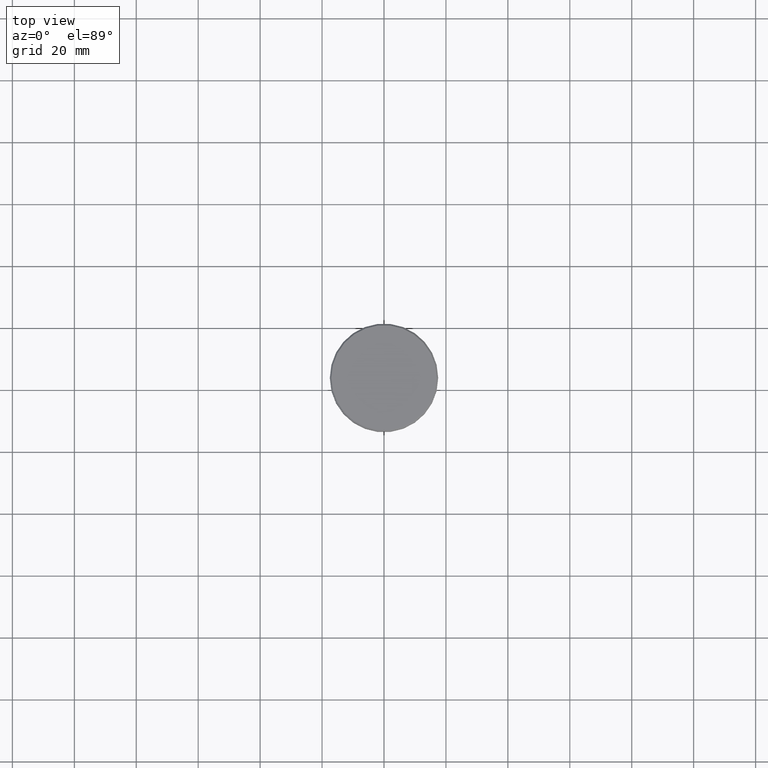
[diagram: clean part render]
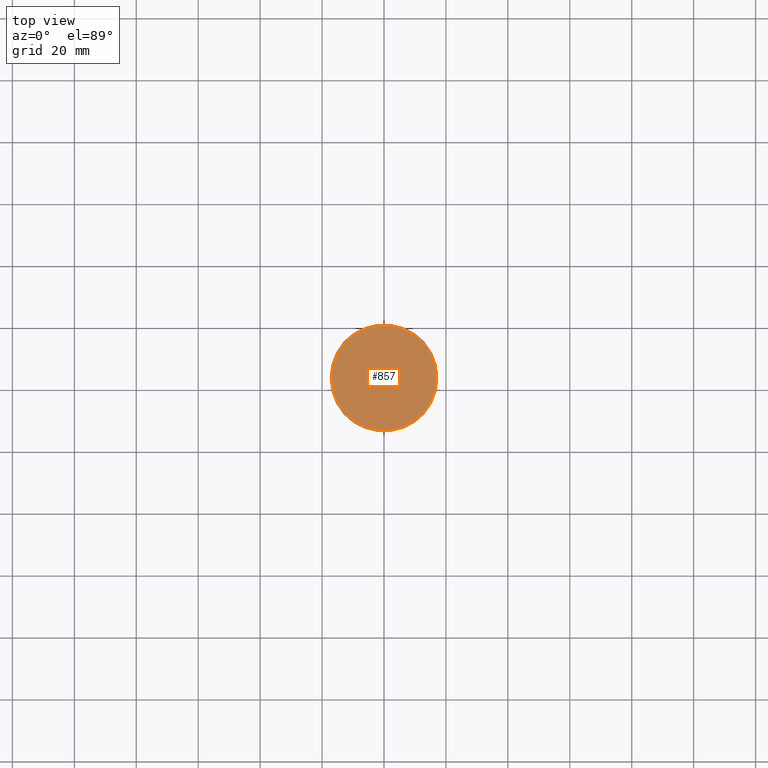
[diagram: same view with one face highlighted and labeled with its STEP entity id]
A machine part, top view. The second image highlights one B-rep face of the part: STEP entity #857.
In plain terms, the highlighted planar face has unit normal (0, -0, 1).
Its self-contained STEP definition (entity closure, byte-faithful):
#2 = FACE_OUTER_BOUND ( 'NONE', #1005, .T. ) ;
#81 = DIRECTION ( 'NONE',  ( 0.000000000000000000, -0.000000000000000000, 1.000000000000000000 ) ) ;
#142 = CIRCLE ( 'NONE', #886, 17.00000000000004263 ) ;
#148 = DIRECTION ( 'NONE',  ( 1.000000000000000000, 0.000000000000000000, 0.000000000000000000 ) ) ;
#172 = AXIS2_PLACEMENT_3D ( 'NONE', #1150, #881, #148 ) ;
#213 = VERTEX_POINT ( 'NONE', #1020 ) ;
#256 = VERTEX_POINT ( 'NONE', #563 ) ;
#364 = ORIENTED_EDGE ( 'NONE', *, *, #654, .T. ) ;
#421 = CIRCLE ( 'NONE', #172, 17.00000000000004263 ) ;
#438 = AXIS2_PLACEMENT_3D ( 'NONE', #802, #81, #1169 ) ;
#457 = EDGE_CURVE ( 'NONE', #213, #256, #142, .T. ) ;
#535 = DIRECTION ( 'NONE',  ( -0.000000000000000000, -0.000000000000000000, 1.000000000000000000 ) ) ;
#563 = CARTESIAN_POINT ( 'NONE',  ( -17.00000000000004263, 0.000000000000000000, 0.000000000000000000 ) ) ;
#654 = EDGE_CURVE ( 'NONE', #256, #213, #421, .T. ) ;
#732 = CARTESIAN_POINT ( 'NONE',  ( 0.000000000000000000, 0.000000000000000000, 0.000000000000000000 ) ) ;
#758 = ORIENTED_EDGE ( 'NONE', *, *, #457, .T. ) ;
#802 = CARTESIAN_POINT ( 'NONE',  ( 0.000000000000000000, 0.000000000000000000, 0.000000000000000000 ) ) ;
#857 = ADVANCED_FACE ( 'NONE', ( #2 ), #906, .T. ) ;
#881 = DIRECTION ( 'NONE',  ( -0.000000000000000000, -0.000000000000000000, 1.000000000000000000 ) ) ;
#886 = AXIS2_PLACEMENT_3D ( 'NONE', #732, #535, #898 ) ;
#898 = DIRECTION ( 'NONE',  ( 1.000000000000000000, 0.000000000000000000, 0.000000000000000000 ) ) ;
#906 = PLANE ( 'NONE',  #438 ) ;
#1005 = EDGE_LOOP ( 'NONE', ( #364, #758 ) ) ;
#1020 = CARTESIAN_POINT ( 'NONE',  ( 17.00000000000004263, 2.112515728529187222E-15, 0.000000000000000000 ) ) ;
#1150 = CARTESIAN_POINT ( 'NONE',  ( 0.000000000000000000, 0.000000000000000000, 0.000000000000000000 ) ) ;
#1169 = DIRECTION ( 'NONE',  ( 1.000000000000000000, 0.000000000000000000, 0.000000000000000000 ) ) ;